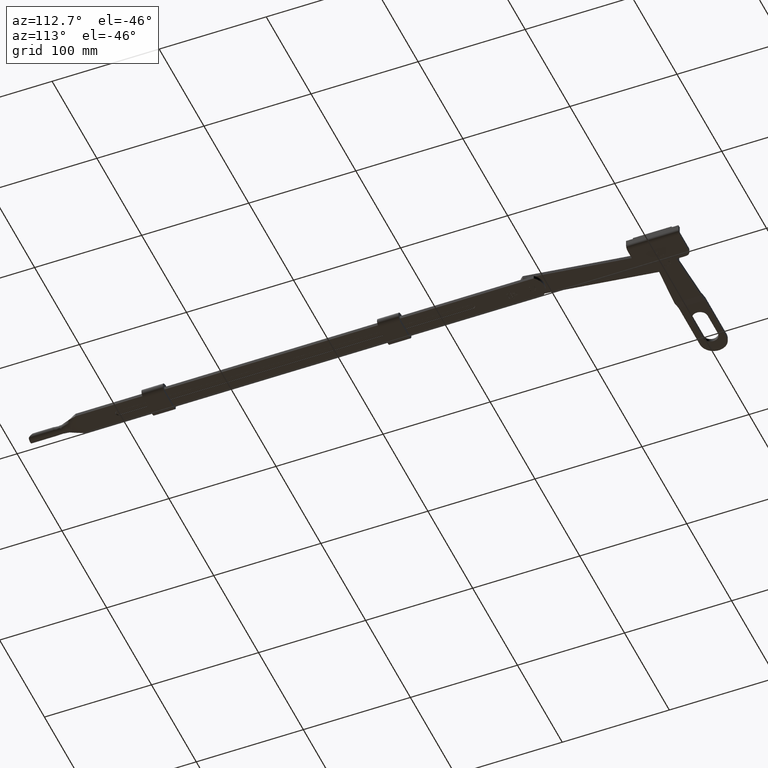
[diagram: clean part render]
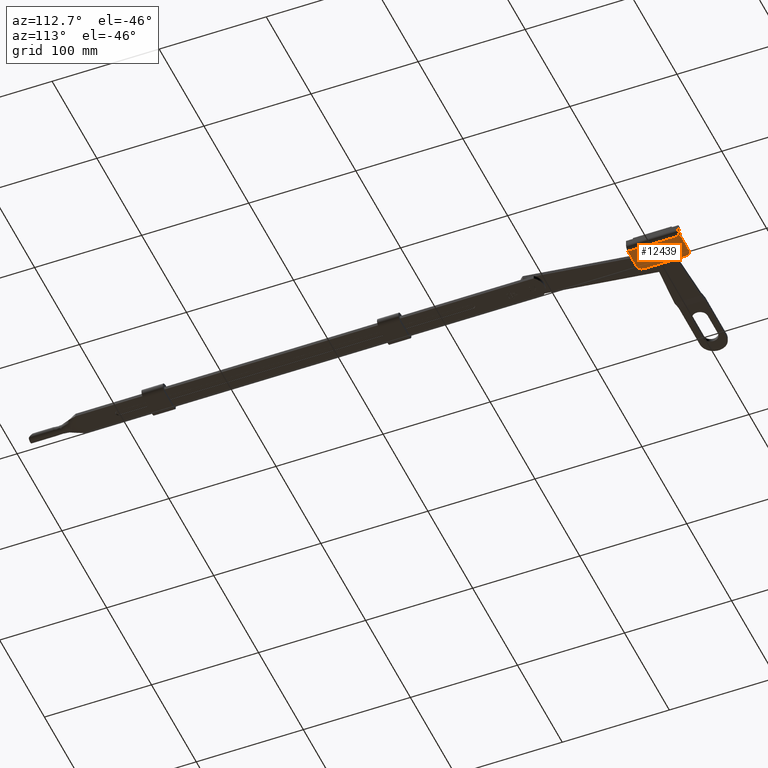
[diagram: same view with one face highlighted and labeled with its STEP entity id]
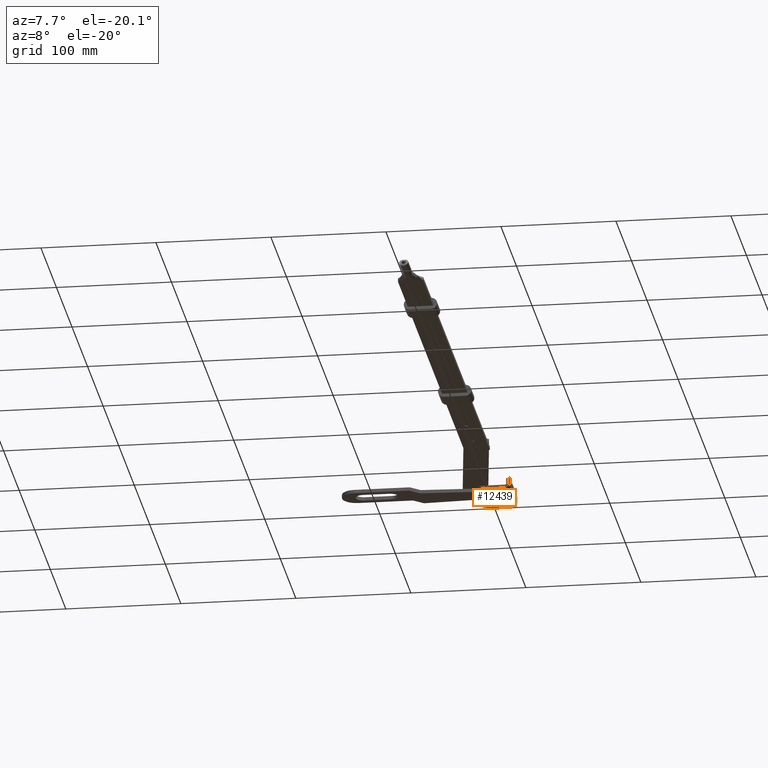
[diagram: same view with one face highlighted and labeled with its STEP entity id]
A machine part, auxiliary view. The second image highlights one B-rep face of the part: STEP entity #12439.
A second angle (auxiliary view) of the same face is appended — the face is thin or edge-on in the first view.
In plain terms, the highlighted planar face has unit normal (0, -0, 1).
Its self-contained STEP definition (entity closure, byte-faithful):
#15 = CARTESIAN_POINT ( 'NONE',  ( 19.50000000000000000, -7.249999999999999112, 8.673617379884035472E-16 ) ) ;
#127 = ORIENTED_EDGE ( 'NONE', *, *, #9278, .T. ) ;
#152 = EDGE_CURVE ( 'NONE', #2031, #11075, #4842, .T. ) ;
#305 = DIRECTION ( 'NONE',  ( -0.000000000000000000, -1.000000000000000000, -1.770125995894700956E-16 ) ) ;
#1383 = CARTESIAN_POINT ( 'NONE',  ( -24.50000000000000000, 12.25000000000000000, 4.336808689942017736E-15 ) ) ;
#1393 = FACE_BOUND ( 'NONE', #2019, .T. ) ;
#1520 = CARTESIAN_POINT ( 'NONE',  ( 3.000000000000000444, -1.250000000000001110, 0.000000000000000000 ) ) ;
#2019 = EDGE_LOOP ( 'NONE', ( #16385 ) ) ;
#2031 = VERTEX_POINT ( 'NONE', #5866 ) ;
#2102 = EDGE_CURVE ( 'NONE', #8243, #8243, #15877, .T. ) ;
#2297 = VERTEX_POINT ( 'NONE', #7908 ) ;
#2345 = EDGE_CURVE ( 'NONE', #2297, #9681, #11365, .T. ) ;
#2654 = DIRECTION ( 'NONE',  ( -0.000000000000000000, -1.770125995894700956E-16, 1.000000000000000000 ) ) ;
#2730 = LINE ( 'NONE', #8139, #3522 ) ;
#2950 = AXIS2_PLACEMENT_3D ( 'NONE', #11591, #3743, #3508 ) ;
#3508 = DIRECTION ( 'NONE',  ( 1.000000000000000000, 0.000000000000000000, 0.000000000000000000 ) ) ;
#3522 = VECTOR ( 'NONE', #305, 1000.000000000000000 ) ;
#3637 = PLANE ( 'NONE',  #9124 ) ;
#3743 = DIRECTION ( 'NONE',  ( 0.000000000000000000, 0.000000000000000000, 1.000000000000000000 ) ) ;
#3747 = EDGE_CURVE ( 'NONE', #11075, #8581, #9730, .T. ) ;
#4737 = CARTESIAN_POINT ( 'NONE',  ( 24.50000000000000000, -12.25000000000000000, 0.000000000000000000 ) ) ;
#4842 = LINE ( 'NONE', #14537, #10421 ) ;
#5244 = CARTESIAN_POINT ( 'NONE',  ( 24.50000000000000000, -12.25000000000000000, 0.000000000000000000 ) ) ;
#5479 = CARTESIAN_POINT ( 'NONE',  ( -19.49999999999999645, -7.250000000000000000, 8.850629979473505765E-16 ) ) ;
#5817 = EDGE_CURVE ( 'NONE', #8581, #9681, #14598, .T. ) ;
#5866 = CARTESIAN_POINT ( 'NONE',  ( 24.50000000000000000, 12.25000000000000000, 4.336808689942017736E-15 ) ) ;
#5873 = FACE_OUTER_BOUND ( 'NONE', #16366, .T. ) ;
#6174 = DIRECTION ( 'NONE',  ( 0.000000000000000000, 1.770125995894700956E-16, -1.000000000000000000 ) ) ;
#6195 = CARTESIAN_POINT ( 'NONE',  ( -24.50000000000000000, -7.250000000000000000, 8.850629979473505765E-16 ) ) ;
#6834 = ORIENTED_EDGE ( 'NONE', *, *, #5817, .T. ) ;
#7256 = CARTESIAN_POINT ( 'NONE',  ( 24.50000000000000000, -7.249999999999999112, 8.850629979473505765E-16 ) ) ;
#7908 = CARTESIAN_POINT ( 'NONE',  ( 19.50000000000000000, -12.25000000000000000, 0.000000000000000000 ) ) ;
#7956 = DIRECTION ( 'NONE',  ( 0.000000000000000000, 1.000000000000000000, 1.770125995894700709E-16 ) ) ;
#8009 = AXIS2_PLACEMENT_3D ( 'NONE', #5479, #13259, #14629 ) ;
#8046 = DIRECTION ( 'NONE',  ( -1.000000000000000000, -0.000000000000000000, -0.000000000000000000 ) ) ;
#8139 = CARTESIAN_POINT ( 'NONE',  ( 24.50000000000000000, -12.25000000000000000, 0.000000000000000000 ) ) ;
#8243 = VERTEX_POINT ( 'NONE', #1520 ) ;
#8317 = VECTOR ( 'NONE', #12838, 1000.000000000000000 ) ;
#8581 = VERTEX_POINT ( 'NONE', #6195 ) ;
#9124 = AXIS2_PLACEMENT_3D ( 'NONE', #4737, #6174, #9959 ) ;
#9278 = EDGE_CURVE ( 'NONE', #2297, #15602, #10277, .T. ) ;
#9331 = AXIS2_PLACEMENT_3D ( 'NONE', #15, #2654, #7956 ) ;
#9554 = VECTOR ( 'NONE', #15765, 1000.000000000000000 ) ;
#9681 = VERTEX_POINT ( 'NONE', #14238 ) ;
#9730 = LINE ( 'NONE', #10420, #8317 ) ;
#9959 = DIRECTION ( 'NONE',  ( 0.000000000000000000, 1.000000000000000000, 1.770125995894700956E-16 ) ) ;
#10277 = CIRCLE ( 'NONE', #9331, 5.000000000000000000 ) ;
#10371 = ORIENTED_EDGE ( 'NONE', *, *, #14627, .F. ) ;
#10420 = CARTESIAN_POINT ( 'NONE',  ( -24.50000000000000000, -12.25000000000000000, 0.000000000000000000 ) ) ;
#10421 = VECTOR ( 'NONE', #8046, 1000.000000000000000 ) ;
#11075 = VERTEX_POINT ( 'NONE', #1383 ) ;
#11365 = LINE ( 'NONE', #5244, #9554 ) ;
#11591 = CARTESIAN_POINT ( 'NONE',  ( 0.000000000000000000, -1.250000000000001110, 0.000000000000000000 ) ) ;
#12439 = ADVANCED_FACE ( 'NONE', ( #1393, #5873 ), #3637, .F. ) ;
#12838 = DIRECTION ( 'NONE',  ( -0.000000000000000000, -1.000000000000000000, -1.770125995894700956E-16 ) ) ;
#13104 = ORIENTED_EDGE ( 'NONE', *, *, #3747, .T. ) ;
#13259 = DIRECTION ( 'NONE',  ( -0.000000000000000000, -1.770125995894700956E-16, 1.000000000000000000 ) ) ;
#14238 = CARTESIAN_POINT ( 'NONE',  ( -19.49999999999999645, -12.25000000000000000, 0.000000000000000000 ) ) ;
#14537 = CARTESIAN_POINT ( 'NONE',  ( 24.50000000000000000, 12.25000000000000000, 4.336808689942017736E-15 ) ) ;
#14598 = CIRCLE ( 'NONE', #8009, 5.000000000000000000 ) ;
#14627 = EDGE_CURVE ( 'NONE', #2031, #15602, #2730, .T. ) ;
#14629 = DIRECTION ( 'NONE',  ( 0.000000000000000000, 1.000000000000000000, 1.770125995894701202E-16 ) ) ;
#15602 = VERTEX_POINT ( 'NONE', #7256 ) ;
#15765 = DIRECTION ( 'NONE',  ( -1.000000000000000000, -0.000000000000000000, -0.000000000000000000 ) ) ;
#15877 = CIRCLE ( 'NONE', #2950, 3.000000000000000444 ) ;
#16040 = ORIENTED_EDGE ( 'NONE', *, *, #152, .T. ) ;
#16366 = EDGE_LOOP ( 'NONE', ( #13104, #6834, #16468, #127, #10371, #16040 ) ) ;
#16385 = ORIENTED_EDGE ( 'NONE', *, *, #2102, .F. ) ;
#16468 = ORIENTED_EDGE ( 'NONE', *, *, #2345, .F. ) ;